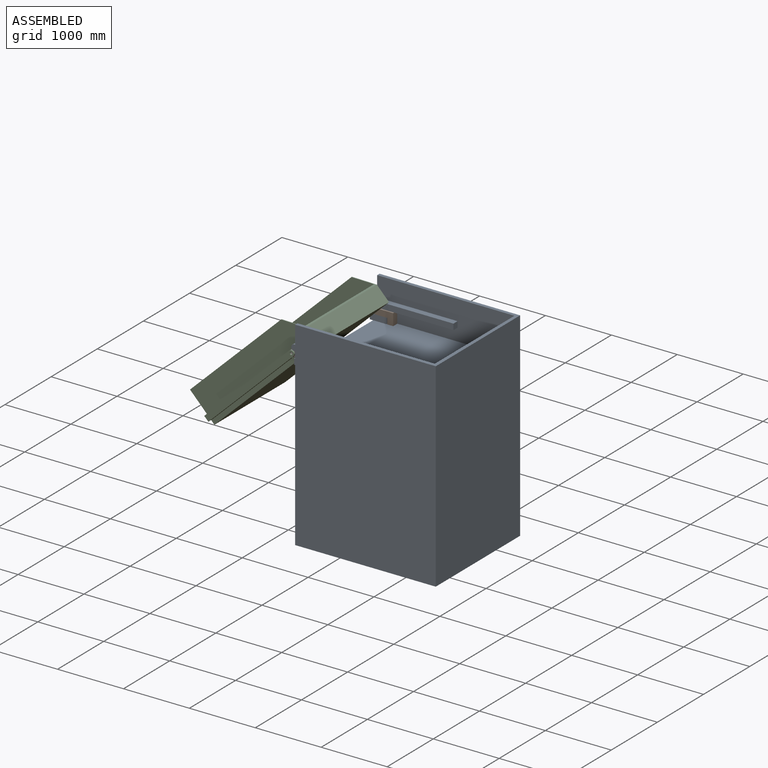
[diagram: assembled view]
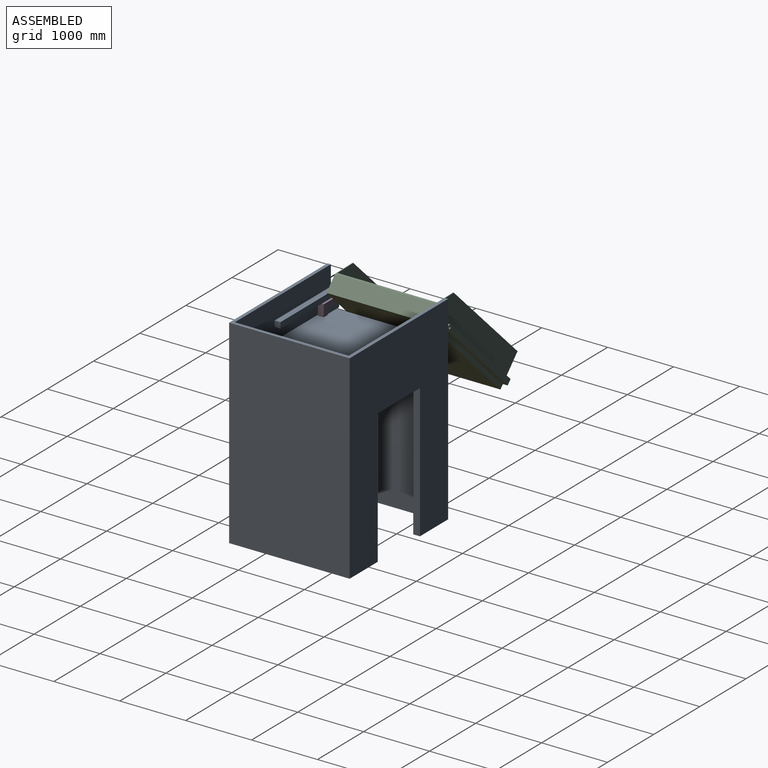
[diagram: assembled view, second angle]
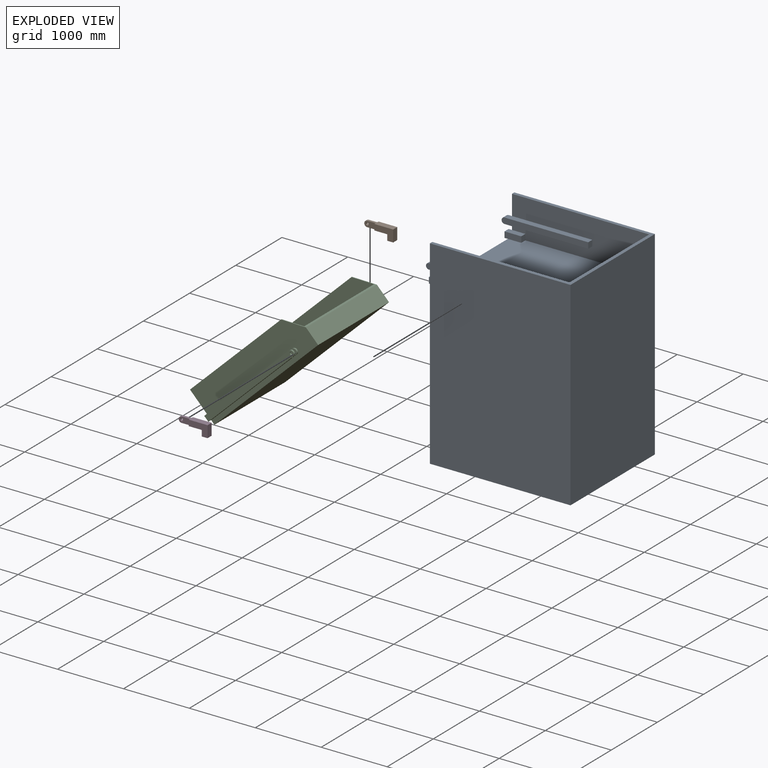
[diagram: exploded view]
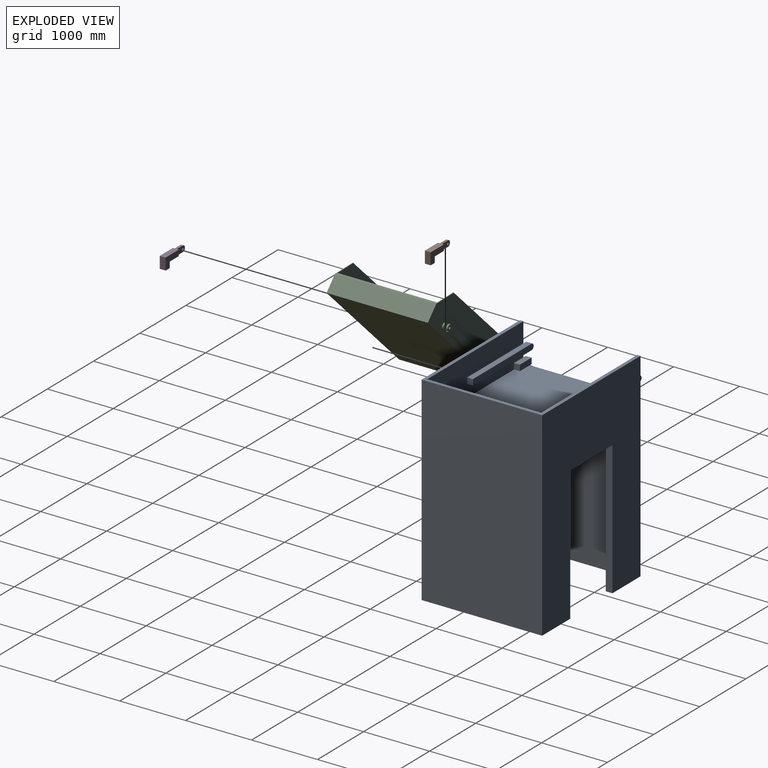
[diagram: exploded view, second angle]
ASSEMBLY  parts=4 mates=3
PART A: 45 faces, bbox 1828.8x2228.9x3022.6 mm
  f0: plane 254x88.9mm, normal (0,0,1), area 22580.6mm2, adj f20,f29,f30,f37,f44
  f1: plane 88.9x50.8mm, normal (0,0,-1), area 4516.1mm2, adj f19,f29,f30,f44
  f2: plane 88.9x50.8mm, normal (0,0,-1), area 4516.1mm2, adj f19,f31,f33,f43
  f3: plane 2082.8x1727.2mm, normal (0,0,1), area 3553380mm2, adj f4,f16,f19,f20,f30,f33,f36,f37
  f4: plane 1727.2x584.2mm, normal (0,-1,0), area 1001127mm2, adj f3,f16,f20,f21,f40,f41
  f5: plane 95.25x88.9mm, normal (-1,0,0), area 7619.7mm2, adj f6,f8,f19,f39
  f6: plane 1270x88.9mm, normal (0,0,-1), area 112903mm2, adj f5,f7,f20,f34,f39
  f7: plane 1314.45x88.9mm, normal (1,0,0), area 116006.6mm2, adj f6,f8,f34,f39
  f8: plane 1270x88.9mm, normal (0,0,1), area 112903mm2, adj f5,f7,f20,f34,f39
  f9: plane 1314.45x88.9mm, normal (-1,0,0), area 116006.6mm2, adj f10,f12,f35,f38
  f10: plane 1270x88.9mm, normal (0,0,-1), area 112903mm2, adj f9,f11,f16,f35,f38
  f11: plane 95.25x88.9mm, normal (1,0,0), area 7619.7mm2, adj f10,f12,f19,f38
  f12: plane 1270x88.9mm, normal (0,0,1), area 112903mm2, adj f9,f11,f16,f35,f38
  f13: plane 2133.6x1828.8mm, normal (0,0,-1), area 670966.4mm2, adj f14,f15,f17,f18,f19,f22,f23,f24
  f14: plane 3022.6x2133.6mm, normal (-1,0,0), area 4590958.6mm2, adj f13,f18,f19,f21,f26,f27,f28
  f15: plane 2286x1930.4mm, normal (1,0,0), area 2554833.6mm2, adj f13,f22,f23,f25,f26,f27,f28
  f16: plane 2082.8x584.2mm, normal (-1,0,0), area 1090320.4mm2, adj f3,f4,f10,f12,f19,f21,f32,f35
  f17: plane 3022.6x2133.6mm, normal (1,0,0), area 6449019.4mm2, adj f13,f18,f19,f21
  f18: plane 3022.6x1828.8mm, normal (0,1,0), area 5527730.9mm2, adj f13,f14,f17,f21
  f19: plane 3022.6x1828.8mm, normal (0,-1,0), area 4518700.6mm2, adj f1,f2,f3,f5,f11,f13,f14,f16
  f20: plane 2082.8x584.2mm, normal (1,0,0), area 1082417.2mm2, adj f0,f3,f4,f6,f8,f19,f21,f34
  f21: plane 2133.6x1828.8mm, normal (0,0,1), area 304515.5mm2, adj f4,f14,f16,f17,f18,f19,f20
  f22: plane 2286x1625.6mm, normal (0,1,0), area 3716121.6mm2, adj f13,f15,f24,f25
  f23: plane 2286x1625.6mm, normal (0,-1,0), area 3716121.6mm2, adj f13,f15,f24,f25
  f24: plane 2286x1930.4mm, normal (-1,0,0), area 4412894.4mm2, adj f13,f22,f23,f25
  f25: plane 1930.4x1625.6mm, normal (0,0,-1), area 3138058.2mm2, adj f15,f22,f23,f24
  f26: plane 2032x101.6mm, normal (0,1,0), area 206451.2mm2, adj f13,f14,f15,f28
  f27: plane 2032x101.6mm, normal (0,-1,0), area 206451.2mm2, adj f13,f14,f15,f28
  f28: plane 914.4x101.6mm, normal (0,0,-1), area 92903mm2, adj f14,f15,f26,f27
  f29: plane 88.9x50.8mm, normal (-1,0,0), area 4516.1mm2, adj f0,f1,f19,f44
  f30: plane 254x88.9mm, normal (1,0,0), area 22580.6mm2, adj f0,f1,f3,f37,f44
  f31: plane 88.9x50.8mm, normal (1,0,0), area 4516.1mm2, adj f2,f19,f32,f43
  f32: plane 254x88.9mm, normal (0,0,1), area 22580.6mm2, adj f16,f31,f33,f36,f43
  f33: plane 254x88.9mm, normal (-1,0,0), area 22580.6mm2, adj f2,f3,f32,f36,f43
  f34: plane 88.9x88.9mm, normal (0,1,0), area 7903.2mm2, adj f6,f7,f8,f20
  f35: plane 88.9x88.9mm, normal (0,1,0), area 7903.2mm2, adj f9,f10,f12,f16
  f36: plane 88.9x88.9mm, normal (0,1,0), area 7903.2mm2, adj f3,f16,f32,f33
  f37: plane 88.9x88.9mm, normal (0,1,0), area 7903.2mm2, adj f0,f3,f20,f30
  f38: cylinder r=44.45mm len=88.9mm, axis (-1,0,0), area 12414.3mm2, adj f9,f10,f11,f12
  f39: cylinder r=44.45mm len=88.9mm, axis (-1,0,0), area 12414.3mm2, adj f5,f6,f7,f8
  f40: plane 88.9x88.9mm, normal (0,0,1), area 7903.2mm2, adj f4,f20,f41,f42
  f41: plane 88.9x88.9mm, normal (1,0,0), area 7903.2mm2, adj f3,f4,f40,f42
  f42: plane 88.9x88.9mm, normal (0,-1,0), area 7903.2mm2, adj f3,f20,f40,f41
  f43: plane 88.9x88.9mm, normal (0,-1,0), area 7903.2mm2, adj f2,f31,f32,f33
  f44: plane 88.9x88.9mm, normal (0,-1,0), area 7903.2mm2, adj f0,f1,f29,f30
PART B: 13 faces, bbox 88.9x457.2x177.8 mm
  f0: plane 412.75x88.9mm, normal (0,0,1), area 29919.3mm2, adj f2,f3,f4,f5,f6,f7,f8,f9
  f1: plane 323.85x88.9mm, normal (0,0,-1), area 22016.1mm2, adj f2,f3,f5,f6,f7,f8,f9,f11
  f2: cylinder r=44.45mm len=88.9mm, axis (-1,0,0), area 4965.7mm2, adj f0,f1,f6,f8
  f3: plane 285.75x177.8mm, normal (1,0,0), area 33306.4mm2, adj f0,f1,f4,f9,f11,f12
  f4: plane 177.8x88.9mm, normal (0,1,0), area 15806.4mm2, adj f0,f3,f5,f12
  f5: plane 285.75x177.8mm, normal (-1,0,0), area 33306.4mm2, adj f0,f1,f4,f7,f11,f12
  f6: plane 171.45x88.9mm, normal (-1,0,0), area 13253.8mm2, adj f0,f1,f2,f7,f10
  f7: plane 88.9x26.67mm, normal (0,-1,0), area 2371mm2, adj f0,f1,f5,f6
  f8: plane 171.45x88.9mm, normal (1,0,0), area 13253.8mm2, adj f0,f1,f2,f9,f10
  f9: plane 88.9x26.67mm, normal (0,-1,0), area 2371mm2, adj f0,f1,f3,f8
  f10: cylinder r=19.05mm len=38.1mm, axis (-1,0,0), area 4256.3mm2, adj f6,f8
  f11: plane 88.9x88.9mm, normal (0,-1,0), area 7903.2mm2, adj f1,f3,f5,f12
  f12: plane 88.9x88.9mm, normal (0,0,-1), area 7903.2mm2, adj f3,f4,f5,f11
PART C: 36 faces, bbox 1714.5x2184.4x533.4 mm
  f0: plane 2184.4x533.4mm, normal (-1,0,0), area 967862.2mm2, adj f1,f8,f9,f10,f15,f19,f21,f26
  f1: plane 1917.7x1536.7mm, normal (0,0,1), area 85738.9mm2, adj f0,f14,f16,f18,f21,f22,f35
  f2: plane 1828.8x88.9mm, normal (1,0,0), area 160592.2mm2, adj f5,f12,f13,f30,f32
  f3: plane 101.6x88.9mm, normal (1,0,0), area 7044.1mm2, adj f5,f13,f29,f31,f33
  f4: plane 101.6x88.9mm, normal (-1,0,0), area 7044.1mm2, adj f5,f13,f29,f30,f32
  f5: plane 1784.35x88.9mm, normal (0,0,1), area 156451.3mm2, adj f2,f3,f4,f12,f14,f29,f30,f31
  f6: plane 101.6x88.9mm, normal (1,0,0), area 7044.1mm2, adj f8,f10,f23,f27,f28
  f7: plane 101.6x88.9mm, normal (-1,0,0), area 7044.1mm2, adj f8,f10,f23,f25,f26
  f8: plane 1784.35x88.9mm, normal (0,0,-1), area 156451.3mm2, adj f0,f6,f7,f9,f11,f23,f26,f28
  f9: plane 88.9x88.9mm, normal (0,-1,0), area 7903.2mm2, adj f0,f8,f10,f11
  f10: plane 1784.35x88.9mm, normal (0,0,1), area 156451.3mm2, adj f0,f6,f7,f9,f11,f23,f26,f28
  f11: plane 1828.8x88.9mm, normal (-1,0,0), area 160592.2mm2, adj f8,f9,f10,f27,f28
  f12: plane 88.9x88.9mm, normal (0,-1,0), area 7903.2mm2, adj f2,f5,f13,f14
  f13: plane 1784.35x88.9mm, normal (0,0,-1), area 156451.3mm2, adj f2,f3,f4,f12,f14,f29,f30,f31
  f14: plane 2184.4x533.4mm, normal (1,0,0), area 967862.2mm2, adj f1,f5,f12,f13,f15,f19,f21,f31
  f15: plane 2184.4x1536.7mm, normal (0,0,-1), area 3356767.5mm2, adj f0,f14,f19,f21
  f16: plane 2133.6x519.71mm, normal (-1,0,0), area 1079738.8mm2, adj f1,f17,f20,f22,f35
  f17: plane 2133.6x1512.02mm, normal (0,0,1), area 3226040.5mm2, adj f16,f18,f20,f22
  f18: plane 2133.6x519.71mm, normal (1,0,0), area 1079738.8mm2, adj f1,f17,f20,f22,f35
  f19: plane 1536.7x266.7mm, normal (0,1,0), area 409837.9mm2, adj f0,f14,f15,f35
  f20: plane 1512.02x278.41mm, normal (0,-1,0), area 420959.6mm2, adj f16,f17,f18,f35
  f21: plane 1536.7x533.4mm, normal (0,-1,0), area 819675.8mm2, adj f0,f1,f14,f15
  f22: plane 1512.02x519.71mm, normal (0,1,0), area 785809.5mm2, adj f1,f16,f17,f18
  f23: plane 88.9x38.1mm, normal (0,1,0), area 3387.1mm2, adj f6,f7,f8,f10
  f24: plane 38.1x38.1mm, normal (-1,0,0), area 1140.1mm2, adj f25
  f25: cylinder r=19.05mm len=38.1mm, axis (-1,0,0), area 3040.2mm2, adj f7,f24
  f26: cylinder r=44.45mm len=88.9mm, axis (-1,0,0), area 3547mm2, adj f0,f7,f8,f10
  f27: cylinder r=19.05mm len=38.1mm, axis (-1,0,0), area 3040.2mm2, adj f6,f11
  f28: cylinder r=44.45mm len=88.9mm, axis (-1,0,0), area 3547mm2, adj f6,f8,f10,f11
  f29: plane 88.9x38.1mm, normal (0,1,0), area 3387.1mm2, adj f3,f4,f5,f13
  f30: cylinder r=44.45mm len=88.9mm, axis (1,0,0), area 3547mm2, adj f2,f4,f5,f13
  f31: cylinder r=44.45mm len=88.9mm, axis (1,0,0), area 3547mm2, adj f3,f5,f13,f14
  f32: cylinder r=19.05mm len=38.1mm, axis (1,0,0), area 3040.2mm2, adj f2,f4
  f33: cylinder r=19.05mm len=38.1mm, axis (1,0,0), area 3040.2mm2, adj f3,f34
  f34: plane 38.1x38.1mm, normal (1,0,0), area 1140.1mm2, adj f33
  f35: plane 1536.7x266.7mm, normal (0,0.71,0.71), area 63622.7mm2, adj f0,f1,f14,f16,f18,f19,f20
PART D: same geometry as B
PLACE A rot(axis=(0,0,-1),90deg) t=(-512.29,3461.08,159.88)mm fixed
PLACE B rot(axis=(0,0,-1),90deg) t=(-2152.19,4324.68,408.66)mm
PLACE C rot(axis=(0.35,-0.35,-0.87),98deg) t=(-2033.95,3468.7,-234.57)mm
PLACE D rot(axis=(0,0,-1),90deg) t=(-2152.19,2701.62,408.66)mm
MATE slider B.f11 <-> A.f42  axis (-1,0,0) through (-1363.19,4280.23,204.33)mm
MATE revolute D.f2 <-> C.f25  axis (0,1,0) through (-1687.04,2674.95,293.23)mm
MATE revolute B.f2 <-> C.f25  axis (0,-1,0) through (-1687.04,4262.45,293.23)mm
